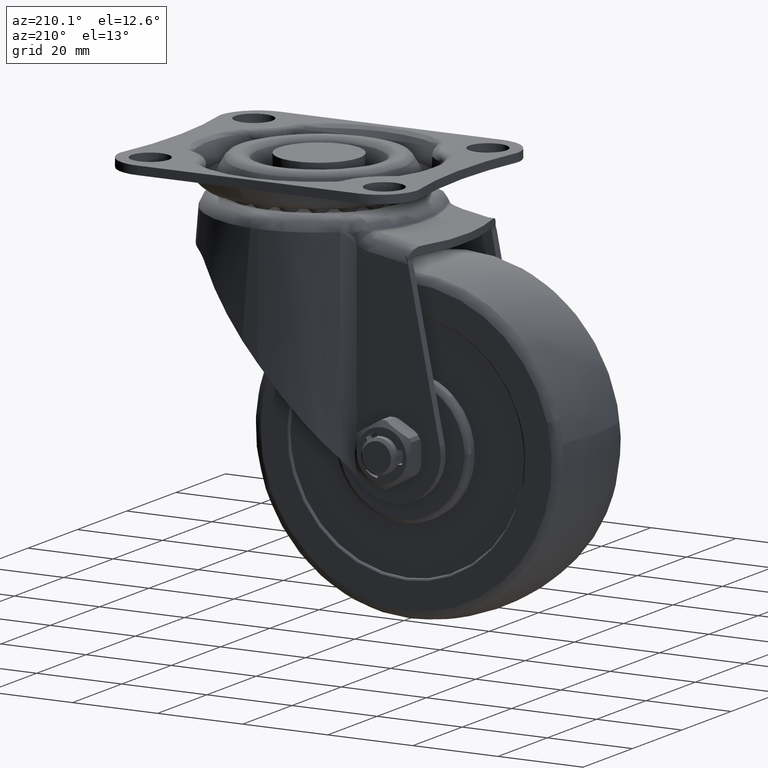
[diagram: clean part render]
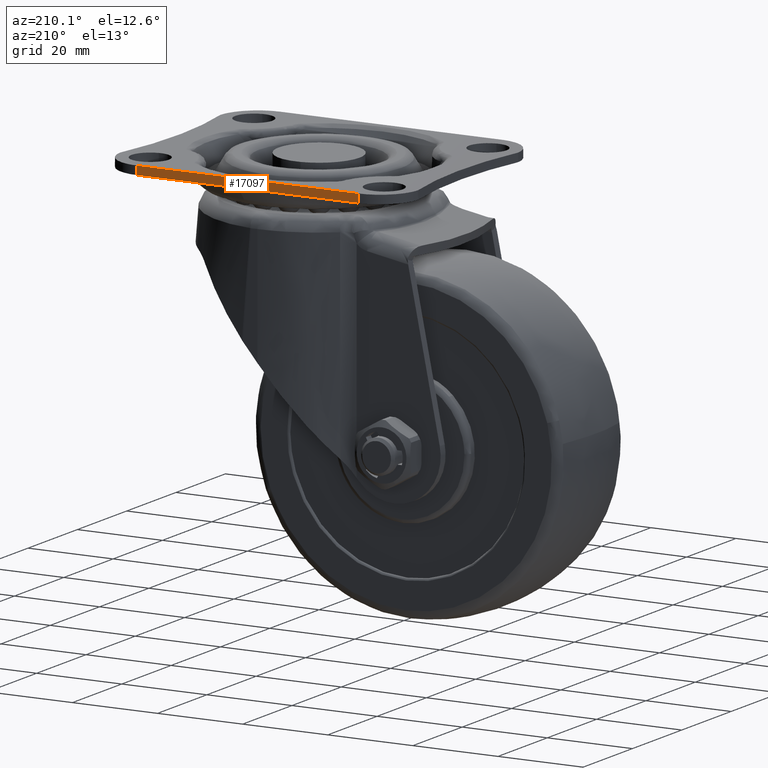
[diagram: same view with one face highlighted and labeled with its STEP entity id]
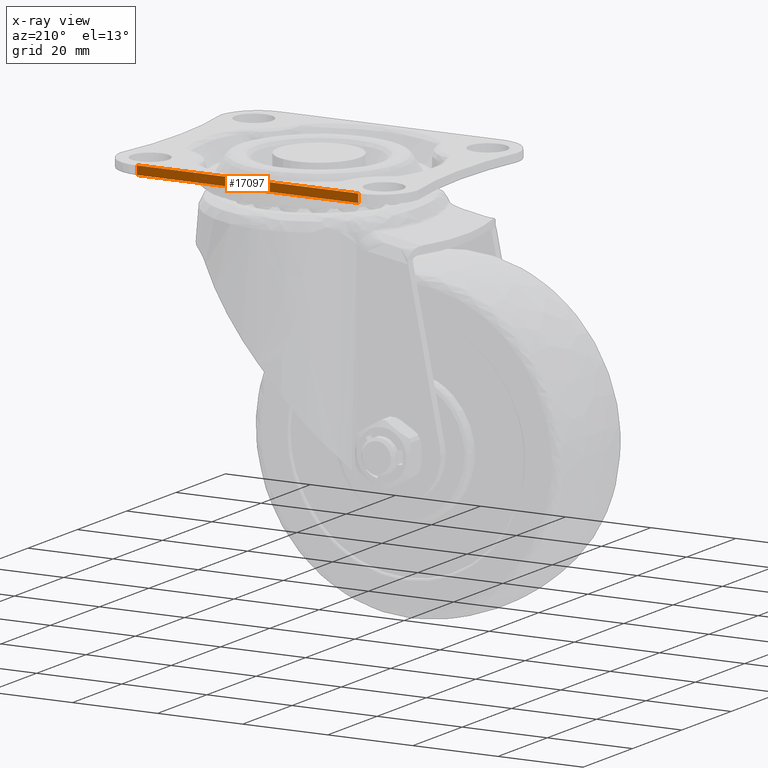
[diagram: x-ray of the same camera — body ghosted, the highlighted face saturated]
A machine part, auxiliary view. The second image highlights one B-rep face of the part: STEP entity #17097.
The next image is the same camera in x-ray: the body ghosted, the highlighted face saturated — about 0% of this face is hidden behind the body in this view.
In plain terms, the highlighted face is a freeform B-spline surface patch.
Its self-contained STEP definition (entity closure, byte-faithful):
#17031=CARTESIAN_POINT('',(25.999992827433399,28.999999999999549,-2.0));
#17032=VERTEX_POINT('',#17031);
#17033=CARTESIAN_POINT('',(25.999992827433399,28.999999999999549,0.0));
#17034=VERTEX_POINT('',#17033);
#17035=CARTESIAN_POINT('',(25.999992827433399,28.999999999999549,-2.0));
#17036=CARTESIAN_POINT('',(25.999992827433399,28.999999999999549,0.0));
#17037=QUASI_UNIFORM_CURVE('',1,(#17035,#17036),.UNSPECIFIED.,.F.,.U.);
#17038=EDGE_CURVE('',#17032,#17034,#17037,.T.);
#17070=CARTESIAN_POINT('',(-28.597389529582880,29.0,0.099899996123612));
#17071=CARTESIAN_POINT('',(-28.597389529582880,29.0,-2.099900049767792));
#17072=CARTESIAN_POINT('',(28.597393286848430,29.0,0.099899996123612));
#17073=CARTESIAN_POINT('',(28.597393286848430,29.0,-2.099900049767792));
#17074=B_SPLINE_SURFACE_WITH_KNOTS('',1,1,((#17070,#17072),(#17071,#17073)),.UNSPECIFIED.,.F.,.F.,.U.,(2,2),(2,2),(0.0,2.199800045891405),(0.0,57.194782816431307),.UNSPECIFIED.);
#17075=CARTESIAN_POINT('',(-25.999990000000000,29.0,-2.0));
#17076=VERTEX_POINT('',#17075);
#17077=CARTESIAN_POINT('',(25.999992827433399,28.999999999999549,-2.0));
#17078=CARTESIAN_POINT('',(-25.999990000000000,29.0,-2.0));
#17079=QUASI_UNIFORM_CURVE('',1,(#17077,#17078),.UNSPECIFIED.,.F.,.U.);
#17080=EDGE_CURVE('',#17032,#17076,#17079,.T.);
#17081=ORIENTED_EDGE('',*,*,#17080,.T.);
#17082=CARTESIAN_POINT('',(-25.999990000000000,29.0,0.0));
#17083=VERTEX_POINT('',#17082);
#17084=CARTESIAN_POINT('',(-25.999990000000000,29.0,-2.0));
#17085=CARTESIAN_POINT('',(-25.999990000000000,29.0,0.0));
#17086=QUASI_UNIFORM_CURVE('',1,(#17084,#17085),.UNSPECIFIED.,.F.,.U.);
#17087=EDGE_CURVE('',#17076,#17083,#17086,.T.);
#17088=ORIENTED_EDGE('',*,*,#17087,.T.);
#17089=CARTESIAN_POINT('',(-25.999990000000000,29.0,0.0));
#17090=CARTESIAN_POINT('',(25.999992827433399,28.999999999999549,0.0));
#17091=QUASI_UNIFORM_CURVE('',1,(#17089,#17090),.UNSPECIFIED.,.F.,.U.);
#17092=EDGE_CURVE('',#17083,#17034,#17091,.T.);
#17093=ORIENTED_EDGE('',*,*,#17092,.T.);
#17094=ORIENTED_EDGE('',*,*,#17038,.F.);
#17095=EDGE_LOOP('',(#17081,#17088,#17093,#17094));
#17096=FACE_OUTER_BOUND('',#17095,.T.);
#17097=ADVANCED_FACE('',(#17096),#17074,.F.);